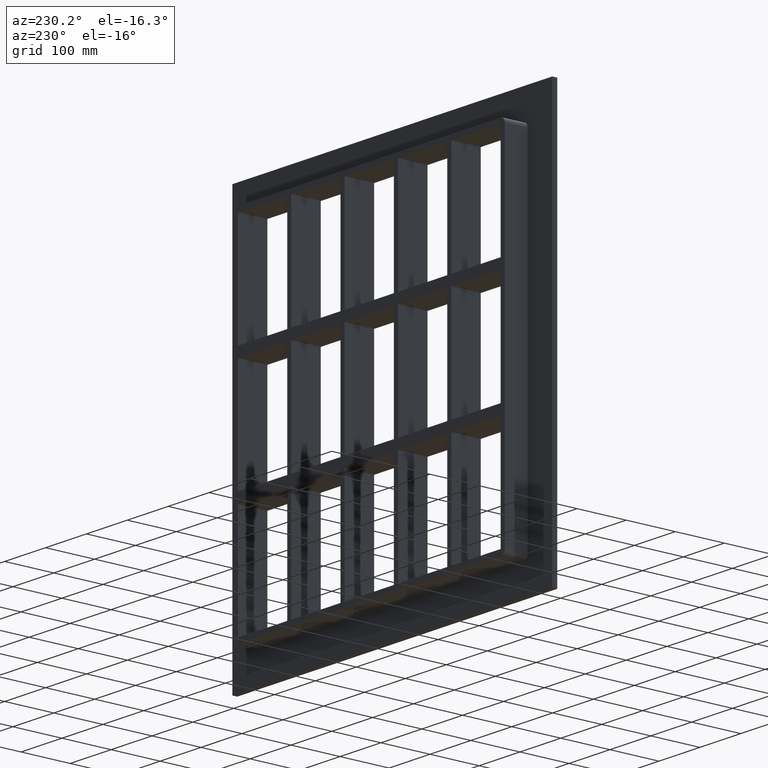
[diagram: clean part render]
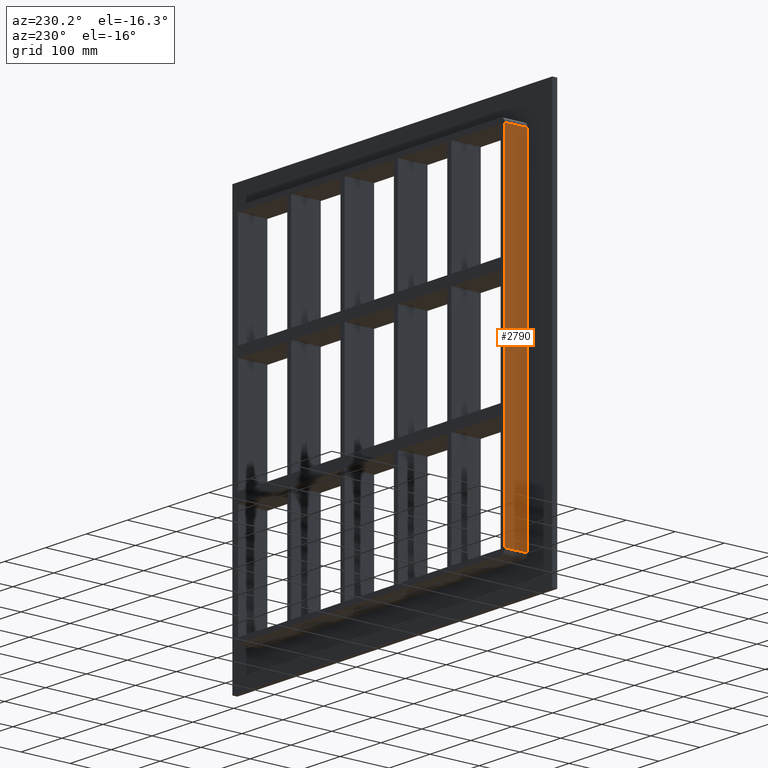
[diagram: same view with one face highlighted and labeled with its STEP entity id]
A machine part, auxiliary view. The second image highlights one B-rep face of the part: STEP entity #2790.
In plain terms, the highlighted planar face has unit normal (-1, 0, 0).
Its self-contained STEP definition (entity closure, byte-faithful):
#864=CARTESIAN_POINT('',(-331.25,57.0,-347.00000000000011));
#865=VERTEX_POINT('',#864);
#873=CARTESIAN_POINT('',(-331.25,57.0,346.99999999999994));
#874=VERTEX_POINT('',#873);
#875=CARTESIAN_POINT('',(-331.25,57.0,-347.00000000000011));
#876=DIRECTION('',(0.0,0.0,1.0));
#877=VECTOR('',#876,694.0);
#878=LINE('',#875,#877);
#879=EDGE_CURVE('',#865,#874,#878,.T.);
#2289=CARTESIAN_POINT('',(-331.25,10.0,-347.00000000000011));
#2290=VERTEX_POINT('',#2289);
#2340=CARTESIAN_POINT('',(-331.25,10.0,346.99999999999994));
#2341=VERTEX_POINT('',#2340);
#2349=CARTESIAN_POINT('',(-331.25,10.0,-347.00000000000011));
#2350=DIRECTION('',(0.0,0.0,1.0));
#2351=VECTOR('',#2350,694.0);
#2352=LINE('',#2349,#2351);
#2353=EDGE_CURVE('',#2290,#2341,#2352,.T.);
#2763=CARTESIAN_POINT('',(-331.25,10.0,-347.00000000000011));
#2764=DIRECTION('',(0.0,1.0,0.0));
#2765=VECTOR('',#2764,47.0);
#2766=LINE('',#2763,#2765);
#2767=EDGE_CURVE('',#2290,#865,#2766,.T.);
#2774=CARTESIAN_POINT('',(-331.25,0.0,-357.00000000000011));
#2775=DIRECTION('',(-1.0,0.0,0.0));
#2776=DIRECTION('',(0.0,0.0,1.0));
#2777=AXIS2_PLACEMENT_3D('',#2774,#2775,#2776);
#2778=PLANE('',#2777);
#2779=ORIENTED_EDGE('',*,*,#2353,.T.);
#2780=CARTESIAN_POINT('',(-331.25,57.0,346.99999999999994));
#2781=DIRECTION('',(0.0,-1.0,0.0));
#2782=VECTOR('',#2781,47.0);
#2783=LINE('',#2780,#2782);
#2784=EDGE_CURVE('',#874,#2341,#2783,.T.);
#2785=ORIENTED_EDGE('',*,*,#2784,.F.);
#2786=ORIENTED_EDGE('',*,*,#879,.F.);
#2787=ORIENTED_EDGE('',*,*,#2767,.F.);
#2788=EDGE_LOOP('',(#2779,#2785,#2786,#2787));
#2789=FACE_OUTER_BOUND('',#2788,.T.);
#2790=ADVANCED_FACE('',(#2789),#2778,.T.);